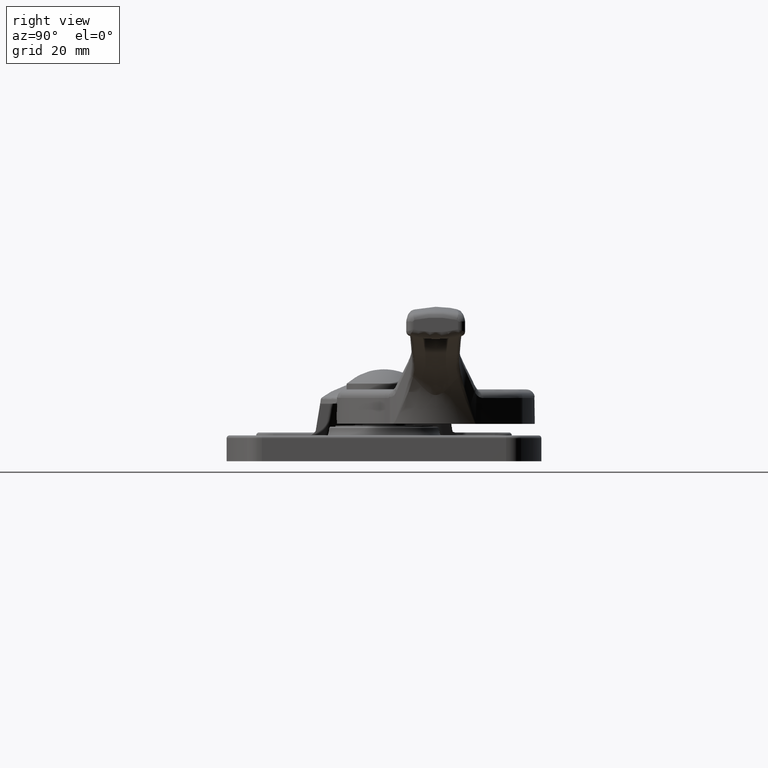
[diagram: clean part render]
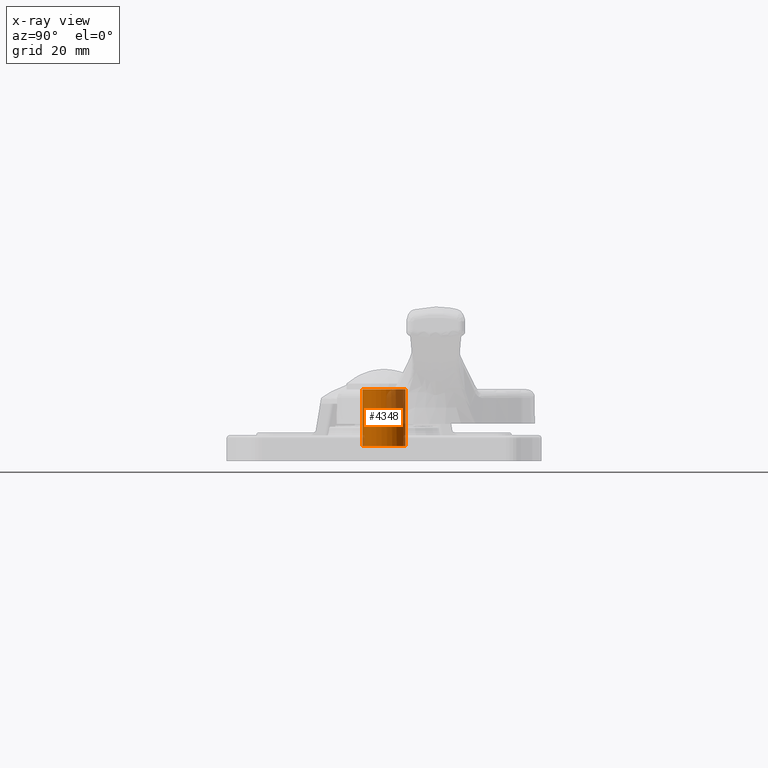
[diagram: x-ray — body ghosted, one internal face saturated and labeled with its STEP entity id]
A machine part, right view, then the same camera in x-ray: the body is ghosted and one INTERNAL B-rep face — a face not visible from any outside direction — is saturated and labeled: STEP entity #4348.
In plain terms, the highlighted cylindrical surface (bore or boss wall) has radius 3.75 mm, axis along (0, 0, 1).
Its self-contained STEP definition (entity closure, byte-faithful):
#932=CYLINDRICAL_SURFACE('',#4854,3.75);
#992=FACE_BOUND('',#1578,.T.);
#1255=FACE_OUTER_BOUND('',#1577,.T.);
#1577=EDGE_LOOP('',(#4059));
#1578=EDGE_LOOP('',(#4060));
#1835=CIRCLE('',#4850,3.75);
#1837=CIRCLE('',#4855,3.75);
#2233=VERTEX_POINT('',#16868);
#2235=VERTEX_POINT('',#16875);
#2843=EDGE_CURVE('',#2233,#2233,#1835,.T.);
#2845=EDGE_CURVE('',#2235,#2235,#1837,.T.);
#4059=ORIENTED_EDGE('',*,*,#2843,.F.);
#4060=ORIENTED_EDGE('',*,*,#2845,.F.);
#4348=ADVANCED_FACE('',(#1255,#992),#932,.T.);
#4850=AXIS2_PLACEMENT_3D('',#16869,#6024,#6025);
#4854=AXIS2_PLACEMENT_3D('',#16874,#6032,#6033);
#4855=AXIS2_PLACEMENT_3D('',#16876,#6034,#6035);
#6024=DIRECTION('center_axis',(0.,0.,-1.));
#6025=DIRECTION('ref_axis',(1.,0.,0.));
#6032=DIRECTION('center_axis',(0.,0.,1.));
#6033=DIRECTION('ref_axis',(0.,-1.,0.));
#6034=DIRECTION('center_axis',(0.,0.,1.));
#6035=DIRECTION('ref_axis',(1.,0.,0.));
#16868=CARTESIAN_POINT('',(-3.75,6.5,-9.9));
#16869=CARTESIAN_POINT('Origin',(0.,6.5,-9.9));
#16874=CARTESIAN_POINT('Origin',(0.,6.5,-4.35));
#16875=CARTESIAN_POINT('',(0.,2.75,0.));
#16876=CARTESIAN_POINT('Origin',(0.,6.5,0.));